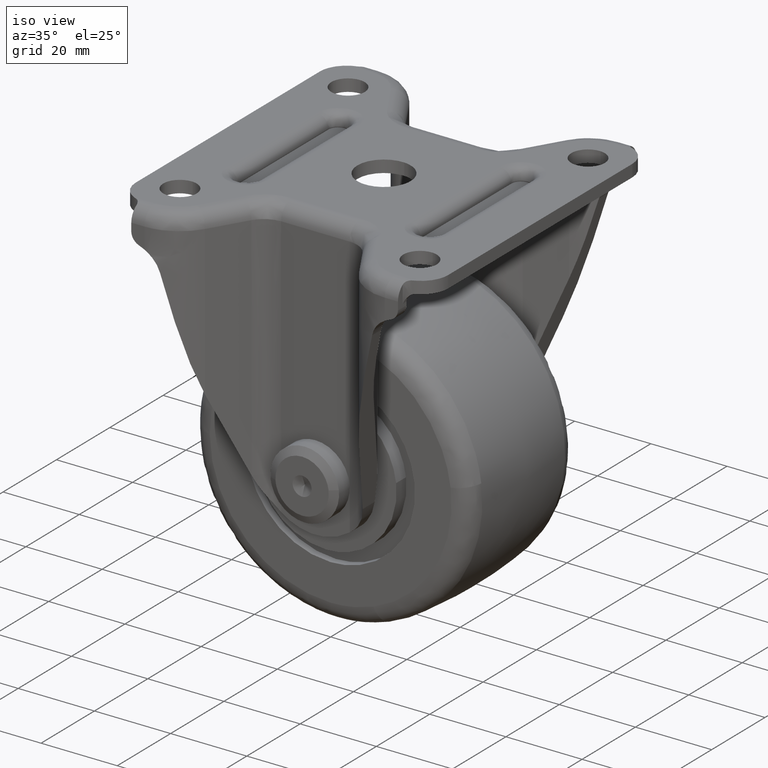
[diagram: clean part render]
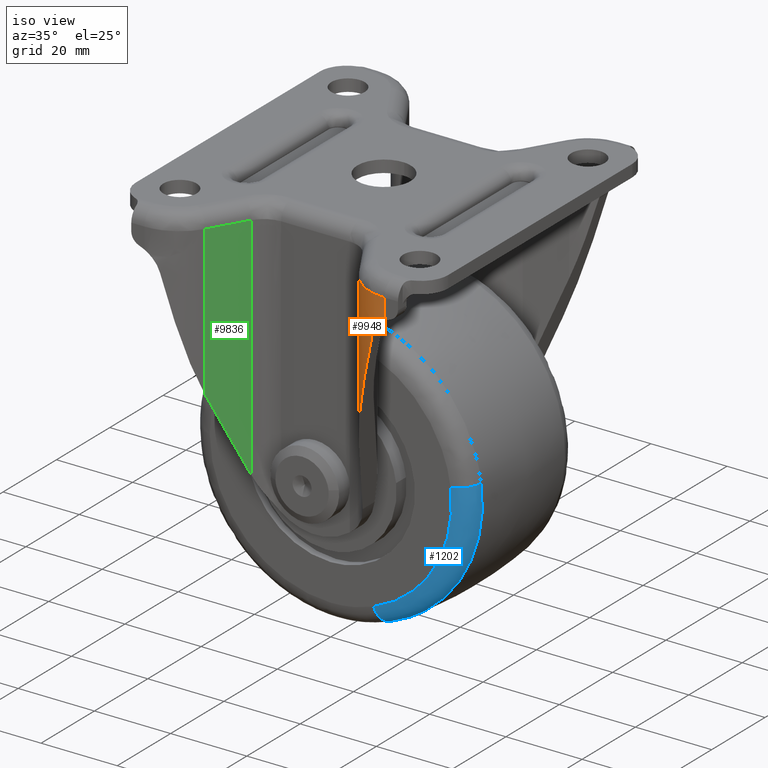
[diagram: same view with three faces highlighted in distinct colors, each labeled with its STEP entity id]
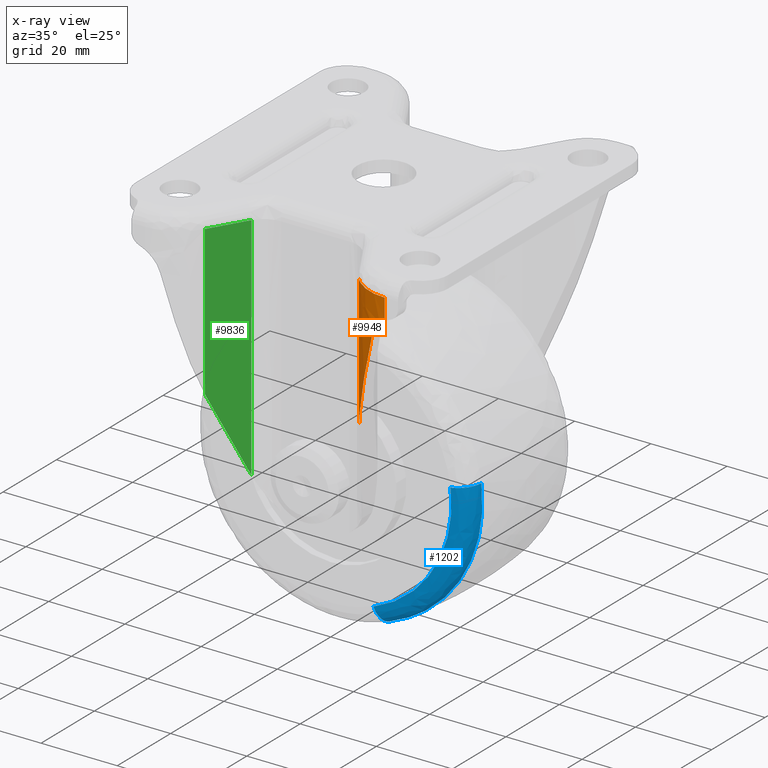
[diagram: x-ray of the same camera — body ghosted, the three highlighted faces saturated]
A machine part, iso view with three faces highlighted in distinct colors.
The next image is the same camera in x-ray (body ghosted, the three faces saturated) — at least one of them is partly hidden behind the body in this view.
Their STEP definitions:

[orange] entity #9948 — the highlighted face is a freeform B-spline surface patch.
#3235=CARTESIAN_POINT('',(31.529712999999902,-44.750000000000000,-9.464167259053451));
#3236=VERTEX_POINT('',#3235);
#3237=CARTESIAN_POINT('',(27.843487000000149,-44.224845660884050,-14.117373000000100));
#3238=VERTEX_POINT('',#3237);
#3239=CARTESIAN_POINT('',(31.529712999999902,-44.750000000000000,-9.464167259053451));
#3240=CARTESIAN_POINT('',(31.302003899249289,-44.749999989587231,-9.585072502810091));
#3241=CARTESIAN_POINT('',(31.082876151083219,-44.744125529120709,-9.716629333726413));
#3242=CARTESIAN_POINT('',(30.660968330245161,-44.723074555904113,-10.000216022868431));
#3243=CARTESIAN_POINT('',(30.458190851606741,-44.707891400227489,-10.152248633244360));
#3244=CARTESIAN_POINT('',(30.068749595857131,-44.670360138229782,-10.476686426593870));
#3245=CARTESIAN_POINT('',(29.882085284686980,-44.648006925007699,-10.649090420811200));
#3246=CARTESIAN_POINT('',(29.614403160220071,-44.610616317329857,-10.923420615624771));
#3247=CARTESIAN_POINT('',(29.527167662295032,-44.597493009012943,-11.017596433586240));
#3248=CARTESIAN_POINT('',(29.358798675597651,-44.570537298128620,-11.209062204049591));
#3249=CARTESIAN_POINT('',(29.277404683572929,-44.556670814424713,-11.306606470525610));
#3250=CARTESIAN_POINT('',(29.041413641183809,-44.514332007254822,-11.604610154233541));
#3251=CARTESIAN_POINT('',(28.894983795721341,-44.485124924738301,-11.810425226538550));
#3252=CARTESIAN_POINT('',(28.623558978835732,-44.426859904241773,-12.236390574921851));
#3253=CARTESIAN_POINT('',(28.498563593556270,-44.397798002693712,-12.456540041831669));
#3254=CARTESIAN_POINT('',(28.327453741073509,-44.355817694967030,-12.797922439904729));
#3255=CARTESIAN_POINT('',(28.273054736904889,-44.342066743421043,-12.913811913943860));
#3256=CARTESIAN_POINT('',(28.170362414766430,-44.315483025010771,-13.148264009172760));
#3257=CARTESIAN_POINT('',(28.122133181330241,-44.302668960185990,-13.266642739315900));
#3258=CARTESIAN_POINT('',(27.986739786670661,-44.265976714088822,-13.625247634918640));
#3259=CARTESIAN_POINT('',(27.908842579506601,-44.243853079624650,-13.868933547217891));
#3260=CARTESIAN_POINT('',(27.843487000000149,-44.224845660884050,-14.117373000000100));
#3261=B_SPLINE_CURVE_WITH_KNOTS('',3,(#3239,#3240,#3241,#3242,#3243,#3244,#3245,#3246,#3247,#3248,#3249,#3250,#3251,#3252,#3253,#3254,#3255,#3256,#3257,#3258,#3259,#3260),.UNSPECIFIED.,.F.,.U.,(4,2,2,2,2,2,2,2,2,2,4),(0.0,0.124999999999999,0.249999999999998,0.374999999999997,0.437499999999997,0.499999999999997,0.624999999999997,0.749999999999998,0.812499999999999,0.874999999999999,1.0),.UNSPECIFIED.);
#3262=EDGE_CURVE('',#3236,#3238,#3261,.T.);
#3334=CARTESIAN_POINT('',(20.182173826665451,-38.293392412047012,-43.240722263544797));
#3335=VERTEX_POINT('',#3334);
#3401=CARTESIAN_POINT('',(20.182173826665451,-38.293392412047012,-43.240722263544683));
#3402=CARTESIAN_POINT('',(22.842726409528648,-42.770474321997632,-33.127024996288235));
#3403=CARTESIAN_POINT('',(27.843487000000170,-44.224845660884050,-14.117372999999951));
#3411=(BOUNDED_CURVE()B_SPLINE_CURVE(2,(#3401,#3402,#3403),.UNSPECIFIED.,.F.,.U.)CURVE()GEOMETRIC_REPRESENTATION_ITEM()QUASI_UNIFORM_CURVE()RATIONAL_B_SPLINE_CURVE((1.0,0.930217076352708,1.0))REPRESENTATION_ITEM(''));
#3412=EDGE_CURVE('',#3335,#3238,#3411,.T.);
#7930=CARTESIAN_POINT('',(20.182173826665501,-38.293392412047062,-4.0));
#7931=VERTEX_POINT('',#7930);
#7980=CARTESIAN_POINT('',(31.529712999999902,-44.750000000000000,-4.0));
#7981=VERTEX_POINT('',#7980);
#8013=CARTESIAN_POINT('',(31.529712999999902,-44.750000000000000,-4.0));
#8014=CARTESIAN_POINT('',(24.019079579032915,-44.749999499999937,-4.0));
#8015=CARTESIAN_POINT('',(20.182173826665501,-38.293392412047062,-4.0));
#8023=(BOUNDED_CURVE()B_SPLINE_CURVE(2,(#8013,#8014,#8015),.UNSPECIFIED.,.F.,.U.)CURVE()GEOMETRIC_REPRESENTATION_ITEM()QUASI_UNIFORM_CURVE()RATIONAL_B_SPLINE_CURVE((1.0,0.869155664215651,1.0))REPRESENTATION_ITEM(''));
#8024=EDGE_CURVE('',#7981,#7931,#8023,.T.);
#9077=CARTESIAN_POINT('',(31.529712999999902,-44.750000000000000,-9.464167259053451));
#9078=CARTESIAN_POINT('',(31.529712999999902,-44.750000000000000,-4.0));
#9079=QUASI_UNIFORM_CURVE('',1,(#9077,#9078),.UNSPECIFIED.,.F.,.U.);
#9080=EDGE_CURVE('',#3236,#7981,#9079,.T.);
#9917=CARTESIAN_POINT('',(20.182173826665451,-38.293392412047012,-43.240722263544797));
#9918=CARTESIAN_POINT('',(20.182173826665501,-38.293392412047062,-4.0));
#9919=QUASI_UNIFORM_CURVE('',1,(#9917,#9918),.UNSPECIFIED.,.F.,.U.);
#9920=EDGE_CURVE('',#3335,#7931,#9919,.T.);
#9927=CARTESIAN_POINT('',(32.041344803973260,-44.740079852563433,-44.221740320133421));
#9928=CARTESIAN_POINT('',(32.041344803973260,-44.740079852563433,-2.994456491996665));
#9929=CARTESIAN_POINT('',(23.746807528388150,-45.061817764322100,-44.221740320133414));
#9930=CARTESIAN_POINT('',(23.746807528388150,-45.061817764322100,-2.994456491996665));
#9931=CARTESIAN_POINT('',(19.863376282032132,-37.725481781369886,-44.221740320133428));
#9932=CARTESIAN_POINT('',(19.863376282032132,-37.725481781369886,-2.994456491996665));
#9940=(BOUNDED_SURFACE()B_SPLINE_SURFACE(1,2,((#9927,#9929,#9931),(#9928,#9930,#9932)),.UNSPECIFIED.,.F.,.F.,.U.)B_SPLINE_SURFACE_WITH_KNOTS((2,2),(3,3),(0.0,41.227283828136770),(0.0,15.221693453582761),.UNSPECIFIED.)GEOMETRIC_REPRESENTATION_ITEM()RATIONAL_B_SPLINE_SURFACE(((1.0,0.842976390210947,0.991618197043999),(1.0,0.842976390210947,0.991618197043999)))REPRESENTATION_ITEM('')SURFACE());
#9941=ORIENTED_EDGE('',*,*,#9920,.F.);
#9942=ORIENTED_EDGE('',*,*,#3412,.T.);
#9943=ORIENTED_EDGE('',*,*,#3262,.F.);
#9944=ORIENTED_EDGE('',*,*,#9080,.T.);
#9945=ORIENTED_EDGE('',*,*,#8024,.T.);
#9946=EDGE_LOOP('',(#9941,#9942,#9943,#9944,#9945));
#9947=FACE_OUTER_BOUND('',#9946,.T.);
#9948=ADVANCED_FACE('',(#9947),#9940,.T.);

[blue] entity #1202 — the highlighted face is a freeform B-spline surface patch.
#1009=CARTESIAN_POINT('',(11.232952753631370,-20.0,-92.166630663768217));
#1010=VERTEX_POINT('',#1009);
#1043=CARTESIAN_POINT('',(31.471908193749741,-20.0,-58.524173399310158));
#1044=VERTEX_POINT('',#1043);
#1058=CARTESIAN_POINT('',(36.405869162965359,-15.517249322232800,-57.900869176845553));
#1059=VERTEX_POINT('',#1058);
#1060=CARTESIAN_POINT('',(31.471908193749734,-19.999999999999996,-58.524173399310158));
#1061=CARTESIAN_POINT('',(35.943303063931744,-20.000000131323485,-57.959304864599837));
#1062=CARTESIAN_POINT('',(36.405869162965367,-15.517249322232791,-57.900869176845546));
#1070=(BOUNDED_CURVE()B_SPLINE_CURVE(2,(#1060,#1061,#1062),.UNSPECIFIED.,.F.,.U.)B_SPLINE_CURVE_WITH_KNOTS((3,3),(-1.709105731578717,-0.280801625573936),.UNSPECIFIED.)CURVE()GEOMETRIC_REPRESENTATION_ITEM()RATIONAL_B_SPLINE_CURVE((0.888415797160040,0.661099642571483,0.891651169065139))REPRESENTATION_ITEM(''));
#1071=EDGE_CURVE('',#1044,#1059,#1070,.T.);
#1120=CARTESIAN_POINT('',(12.993981891003260,-15.517251239581840,-96.817571707790449));
#1121=VERTEX_POINT('',#1120);
#1135=CARTESIAN_POINT('',(11.232952753631370,-19.999999999999996,-92.166630663768217));
#1136=CARTESIAN_POINT('',(12.828882273252912,-20.000000127437975,-96.381537702277129));
#1137=CARTESIAN_POINT('',(12.993981891003264,-15.517251239581842,-96.817571707790464));
#1145=(BOUNDED_CURVE()B_SPLINE_CURVE(2,(#1135,#1136,#1137),.UNSPECIFIED.,.F.,.U.)B_SPLINE_CURVE_WITH_KNOTS((3,3),(-1.709105731637911,-0.280802039330579),.UNSPECIFIED.)CURVE()GEOMETRIC_REPRESENTATION_ITEM()RATIONAL_B_SPLINE_CURVE((0.818471090464138,0.609051528538207,0.821451619443580))REPRESENTATION_ITEM(''));
#1146=EDGE_CURVE('',#1010,#1121,#1145,.T.);
#1151=CARTESIAN_POINT('',(31.144063117126191,-19.989068278055235,-58.565589864127105));
#1152=CARTESIAN_POINT('',(34.243551184355013,-19.989068278055242,-83.100564272720945));
#1153=CARTESIAN_POINT('',(11.115942164429354,-19.989068278055250,-91.857589825424384));
#1154=CARTESIAN_POINT('',(36.236362092218059,-20.329037295565222,-57.922282899741994));
#1155=CARTESIAN_POINT('',(39.842640806791131,-20.329037295565218,-86.468918361195776));
#1156=CARTESIAN_POINT('',(12.933486030758615,-20.329037295565222,-96.657786383495377));
#1157=CARTESIAN_POINT('',(36.428948414763759,-15.188682227280793,-57.897953589317581));
#1158=CARTESIAN_POINT('',(40.054393511269623,-15.188682227280800,-86.596306586063207));
#1159=CARTESIAN_POINT('',(13.002223960521581,-15.188682227280800,-96.839325646436848));
#1167=(BOUNDED_SURFACE()B_SPLINE_SURFACE(2,2,((#1151,#1154,#1157),(#1152,#1155,#1158),(#1153,#1156,#1159)),.UNSPECIFIED.,.F.,.F.,.U.)B_SPLINE_SURFACE_WITH_KNOTS((3,3),(3,3),(0.0,50.879746111400813),(0.0,8.451077164795962),.UNSPECIFIED.)GEOMETRIC_REPRESENTATION_ITEM()RATIONAL_B_SPLINE_SURFACE(((0.912267062000595,0.637086765152233,0.915825659211853),(0.687821742520533,0.480344130788636,0.690504817068252),(0.840444521238383,0.586929095249226,0.843722951047015)))REPRESENTATION_ITEM('')SURFACE());
#1168=CARTESIAN_POINT('',(31.471908193749741,-20.000000000000004,-58.524173399310158));
#1169=CARTESIAN_POINT('',(31.722046000000095,-20.000000000000004,-60.504218031244797));
#1170=CARTESIAN_POINT('',(31.722046000000098,-20.0,-62.500000000000000));
#1171=CARTESIAN_POINT('',(31.722046000000102,-20.0,-84.408654402487826));
#1172=CARTESIAN_POINT('',(11.232952753631368,-20.0,-92.166630663768217));
#1180=(BOUNDED_CURVE()B_SPLINE_CURVE(2,(#1168,#1169,#1170,#1171,#1172),.UNSPECIFIED.,.F.,.U.)B_SPLINE_CURVE_WITH_KNOTS((3,2,3),(0.228321256480908,0.250000000000000,0.439864366382971),.UNSPECIFIED.)CURVE()GEOMETRIC_REPRESENTATION_ITEM()RATIONAL_B_SPLINE_CURVE((0.953608357590697,0.974601772123448,1.0,0.777560058368460,0.892987465346019))REPRESENTATION_ITEM(''));
#1181=EDGE_CURVE('',#1044,#1010,#1180,.T.);
#1182=ORIENTED_EDGE('',*,*,#1181,.T.);
#1183=ORIENTED_EDGE('',*,*,#1146,.T.);
#1184=CARTESIAN_POINT('',(36.405869162965359,-15.517249322232800,-57.900869176845546));
#1185=CARTESIAN_POINT('',(36.695222014820310,-15.517249434924160,-60.191332283339115));
#1186=CARTESIAN_POINT('',(36.695222087570322,-15.517249548538340,-62.499999913662421));
#1187=CARTESIAN_POINT('',(36.695222886182009,-15.517250795735674,-87.843351047338032));
#1188=CARTESIAN_POINT('',(12.993981891003266,-15.517251239581846,-96.817571707790449));
#1196=(BOUNDED_CURVE()B_SPLINE_CURVE(2,(#1184,#1185,#1186,#1187,#1188),.UNSPECIFIED.,.F.,.U.)B_SPLINE_CURVE_WITH_KNOTS((3,2,3),(0.228321257227900,0.250000000000000,0.439864366935184),.UNSPECIFIED.)CURVE()GEOMETRIC_REPRESENTATION_ITEM()RATIONAL_B_SPLINE_CURVE((0.953608359037452,0.974601772998603,1.0,0.777560057721503,0.892987466017451))REPRESENTATION_ITEM(''));
#1197=EDGE_CURVE('',#1059,#1121,#1196,.T.);
#1198=ORIENTED_EDGE('',*,*,#1197,.F.);
#1199=ORIENTED_EDGE('',*,*,#1071,.F.);
#1200=EDGE_LOOP('',(#1182,#1183,#1198,#1199));
#1201=FACE_OUTER_BOUND('',#1200,.T.);
#1202=ADVANCED_FACE('',(#1201),#1167,.T.);

[green] entity #9836 — the highlighted face is a freeform B-spline surface patch.
#2990=CARTESIAN_POINT('',(-14.587800587528999,-28.879386947977999,-64.506870428239296));
#2991=VERTEX_POINT('',#2990);
#3005=CARTESIAN_POINT('',(-20.182168908038101,-38.293392548977756,-43.240709544339254));
#3006=VERTEX_POINT('',#3005);
#3007=CARTESIAN_POINT('',(-14.587800587528999,-28.879386947977999,-64.506870428239296));
#3008=CARTESIAN_POINT('',(-20.182168908038101,-38.293392548977756,-43.240709544339254));
#3009=QUASI_UNIFORM_CURVE('',1,(#3007,#3008),.UNSPECIFIED.,.F.,.U.);
#3010=EDGE_CURVE('',#2991,#3006,#3009,.T.);
#7647=CARTESIAN_POINT('',(-20.182168750000351,-38.293393999999900,-4.0));
#7648=VERTEX_POINT('',#7647);
#7710=CARTESIAN_POINT('',(-14.587802801252700,-28.879385632448400,-4.0));
#7711=VERTEX_POINT('',#7710);
#7733=CARTESIAN_POINT('',(-14.587802801252700,-28.879385632448400,-4.0));
#7734=CARTESIAN_POINT('',(-20.182168750000351,-38.293393999999900,-4.0));
#7735=QUASI_UNIFORM_CURVE('',1,(#7733,#7734),.UNSPECIFIED.,.F.,.U.);
#7736=EDGE_CURVE('',#7711,#7648,#7735,.T.);
#9062=CARTESIAN_POINT('',(-20.182168908038101,-38.293392548977756,-43.240709544339254));
#9063=CARTESIAN_POINT('',(-20.182168750000351,-38.293393999999900,-4.0));
#9064=QUASI_UNIFORM_CURVE('',1,(#9062,#9063),.UNSPECIFIED.,.F.,.U.);
#9065=EDGE_CURVE('',#3006,#7648,#9064,.T.);
#9821=CARTESIAN_POINT('',(-14.308359361755000,-28.409158320618229,-67.529192464822259));
#9822=CARTESIAN_POINT('',(-20.461606861737572,-38.763622427864782,-67.529192464822259));
#9823=CARTESIAN_POINT('',(-14.308359361755000,-28.409158320618229,-0.977680127311356));
#9824=CARTESIAN_POINT('',(-20.461606861737572,-38.763622427864782,-0.977680127311356));
#9825=B_SPLINE_SURFACE_WITH_KNOTS('',1,1,((#9821,#9823),(#9822,#9824)),.UNSPECIFIED.,.F.,.F.,.U.,(2,2),(2,2),(0.0,12.044807252268450),(0.0,66.551512337510900),.UNSPECIFIED.);
#9826=ORIENTED_EDGE('',*,*,#3010,.F.);
#9827=CARTESIAN_POINT('',(-14.587800587528999,-28.879386947977999,-64.506870428239296));
#9828=CARTESIAN_POINT('',(-14.587802801252700,-28.879385632448400,-4.0));
#9829=QUASI_UNIFORM_CURVE('',1,(#9827,#9828),.UNSPECIFIED.,.F.,.U.);
#9830=EDGE_CURVE('',#2991,#7711,#9829,.T.);
#9831=ORIENTED_EDGE('',*,*,#9830,.T.);
#9832=ORIENTED_EDGE('',*,*,#7736,.T.);
#9833=ORIENTED_EDGE('',*,*,#9065,.F.);
#9834=EDGE_LOOP('',(#9826,#9831,#9832,#9833));
#9835=FACE_OUTER_BOUND('',#9834,.T.);
#9836=ADVANCED_FACE('',(#9835),#9825,.F.);